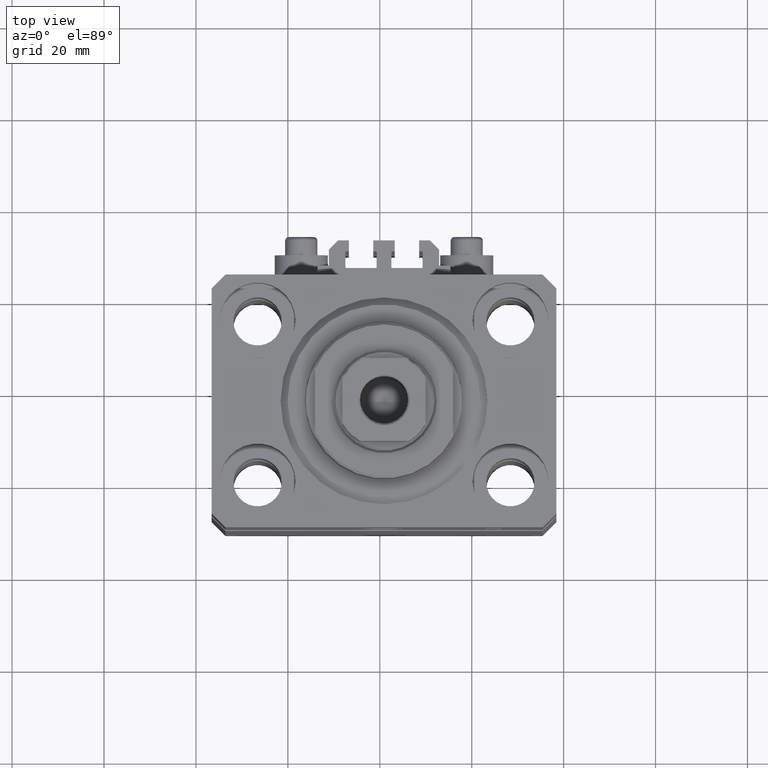
[diagram: clean part render]
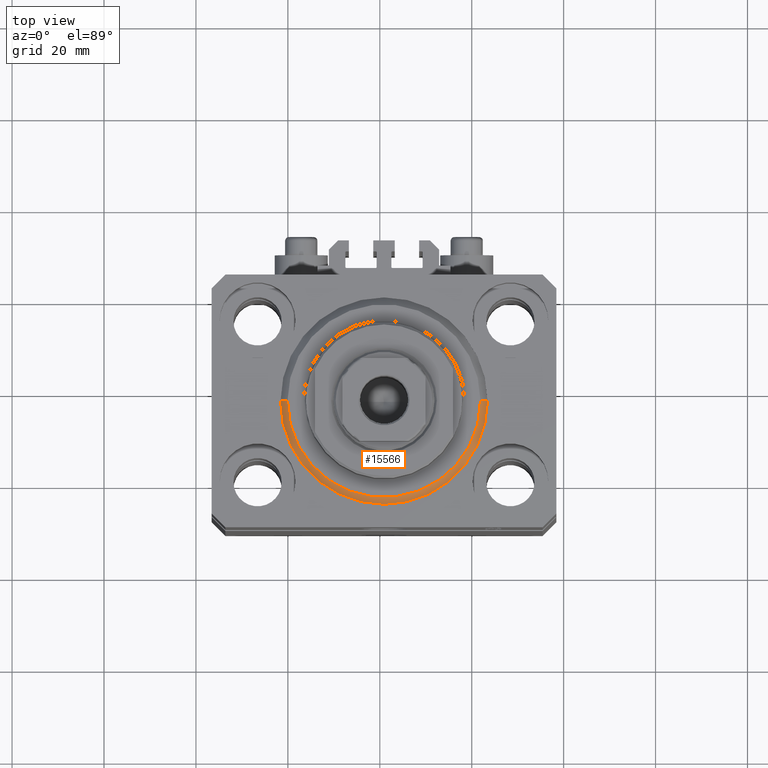
[diagram: same view with one face highlighted and labeled with its STEP entity id]
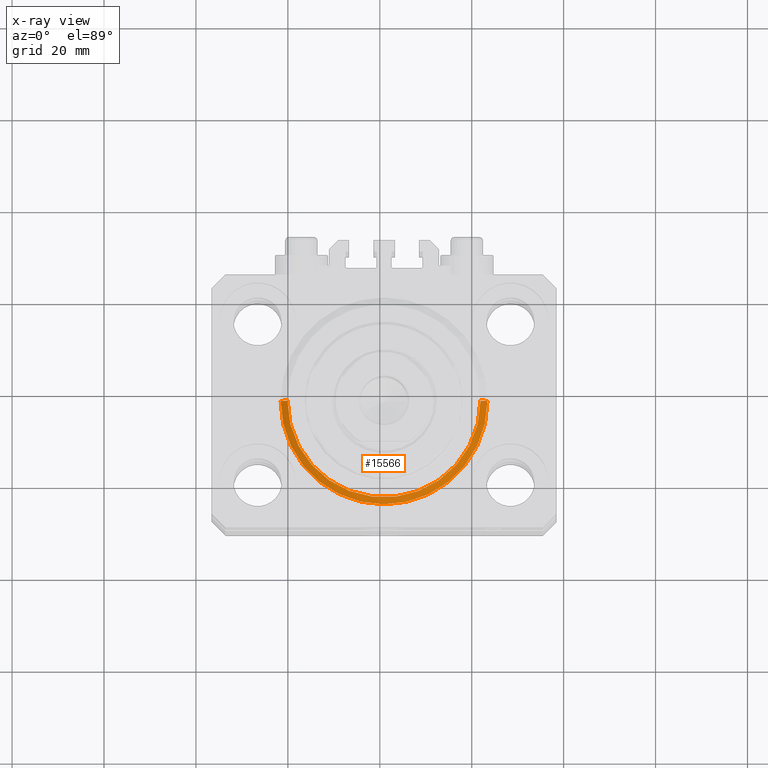
[diagram: x-ray of the same camera — body ghosted, the highlighted face saturated]
A machine part, top view. The second image highlights one B-rep face of the part: STEP entity #15566.
The next image is the same camera in x-ray: the body ghosted, the highlighted face saturated — about 0% of this face is hidden behind the body in this view.
In plain terms, the highlighted conical surface has half-angle 45 deg.
Its self-contained STEP definition (entity closure, byte-faithful):
#1134 = CARTESIAN_POINT ( 'NONE',  ( -22.50000000000000355, 0.000000000000000000, 1.500000000000039524 ) ) ;
#1997 = CIRCLE ( 'NONE', #32986, 22.50000000000000355 ) ;
#3138 = FACE_OUTER_BOUND ( 'NONE', #12772, .T. ) ;
#5702 = CARTESIAN_POINT ( 'NONE',  ( 0.000000000000000000, 0.000000000000000000, 0.000000000000000000 ) ) ;
#5931 = DIRECTION ( 'NONE',  ( -0.000000000000000000, -0.000000000000000000, 1.000000000000000000 ) ) ;
#6704 = AXIS2_PLACEMENT_3D ( 'NONE', #17595, #25853, #29640 ) ;
#8848 = VERTEX_POINT ( 'NONE', #28052 ) ;
#9755 = CONICAL_SURFACE ( 'NONE', #6704, 22.50000000000000355, 0.7853981633974517207 ) ;
#10166 = EDGE_CURVE ( 'NONE', #8848, #33206, #25611, .T. ) ;
#10378 = EDGE_CURVE ( 'NONE', #41098, #33206, #1997, .T. ) ;
#10758 = ORIENTED_EDGE ( 'NONE', *, *, #45946, .F. ) ;
#12772 = EDGE_LOOP ( 'NONE', ( #10758, #17832, #44127, #33585 ) ) ;
#13282 = DIRECTION ( 'NONE',  ( 1.000000000000000000, 0.000000000000000000, 0.000000000000000000 ) ) ;
#15566 = ADVANCED_FACE ( 'NONE', ( #3138 ), #9755, .T. ) ;
#17595 = CARTESIAN_POINT ( 'NONE',  ( 0.000000000000000000, 0.000000000000000000, 1.500000000000039524 ) ) ;
#17832 = ORIENTED_EDGE ( 'NONE', *, *, #28355, .F. ) ;
#19778 = DIRECTION ( 'NONE',  ( -0.7071067811865500152, 8.659560562354962440E-17, 0.7071067811865451302 ) ) ;
#20155 = CARTESIAN_POINT ( 'NONE',  ( 0.000000000000000000, 0.000000000000000000, 1.500000000000039524 ) ) ;
#22073 = DIRECTION ( 'NONE',  ( 0.7071067811865500152, 0.000000000000000000, 0.7071067811865451302 ) ) ;
#22400 = AXIS2_PLACEMENT_3D ( 'NONE', #5702, #27271, #23261 ) ;
#23186 = CIRCLE ( 'NONE', #22400, 20.99999999999995381 ) ;
#23261 = DIRECTION ( 'NONE',  ( 1.000000000000000000, 0.000000000000000000, 0.000000000000000000 ) ) ;
#25611 = LINE ( 'NONE', #40766, #26952 ) ;
#25853 = DIRECTION ( 'NONE',  ( -0.000000000000000000, -0.000000000000000000, 1.000000000000000000 ) ) ;
#26871 = CARTESIAN_POINT ( 'NONE',  ( -22.50000000000000355, 2.755455298081545172E-15, 1.500000000000039524 ) ) ;
#26952 = VECTOR ( 'NONE', #22073, 1000.000000000000114 ) ;
#27271 = DIRECTION ( 'NONE',  ( -0.000000000000000000, -0.000000000000000000, -1.000000000000000000 ) ) ;
#28052 = CARTESIAN_POINT ( 'NONE',  ( 20.99999999999995381, 0.000000000000000000, 0.000000000000000000 ) ) ;
#28355 = EDGE_CURVE ( 'NONE', #8848, #32060, #23186, .T. ) ;
#29640 = DIRECTION ( 'NONE',  ( 1.000000000000000000, 0.000000000000000000, 0.000000000000000000 ) ) ;
#31753 = CARTESIAN_POINT ( 'NONE',  ( 22.50000000000000355, 2.755455298081544383E-15, 1.500000000000039524 ) ) ;
#32060 = VERTEX_POINT ( 'NONE', #34129 ) ;
#32986 = AXIS2_PLACEMENT_3D ( 'NONE', #20155, #5931, #13282 ) ;
#33206 = VERTEX_POINT ( 'NONE', #31753 ) ;
#33585 = ORIENTED_EDGE ( 'NONE', *, *, #10378, .F. ) ;
#33729 = LINE ( 'NONE', #26871, #36445 ) ;
#34129 = CARTESIAN_POINT ( 'NONE',  ( -20.99999999999995381, 2.663606788145490261E-15, 0.000000000000000000 ) ) ;
#36445 = VECTOR ( 'NONE', #19778, 1000.000000000000114 ) ;
#40766 = CARTESIAN_POINT ( 'NONE',  ( 22.50000000000000355, 0.000000000000000000, 1.500000000000039524 ) ) ;
#41098 = VERTEX_POINT ( 'NONE', #1134 ) ;
#44127 = ORIENTED_EDGE ( 'NONE', *, *, #10166, .T. ) ;
#45946 = EDGE_CURVE ( 'NONE', #32060, #41098, #33729, .T. ) ;